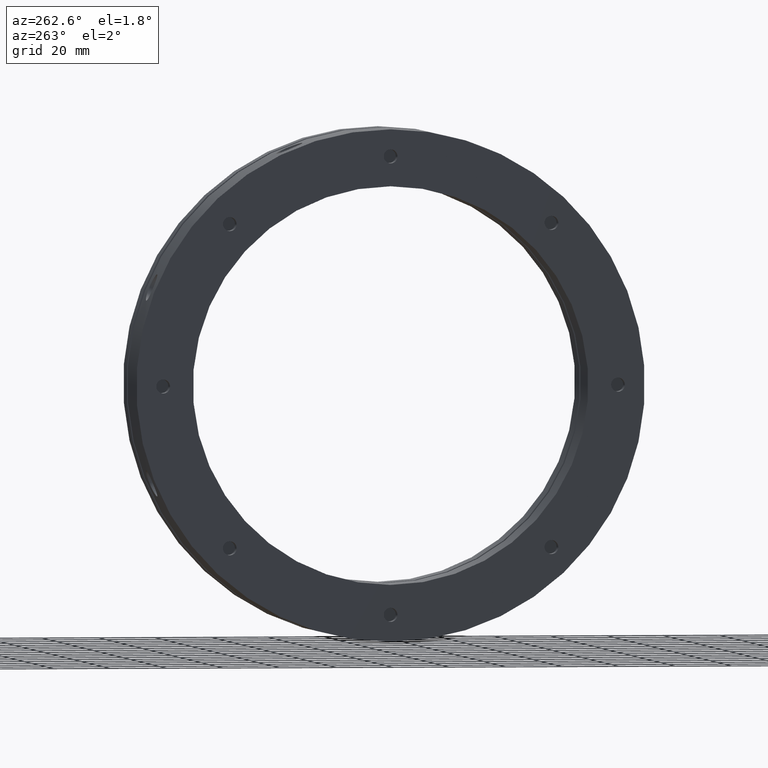
[diagram: clean part render]
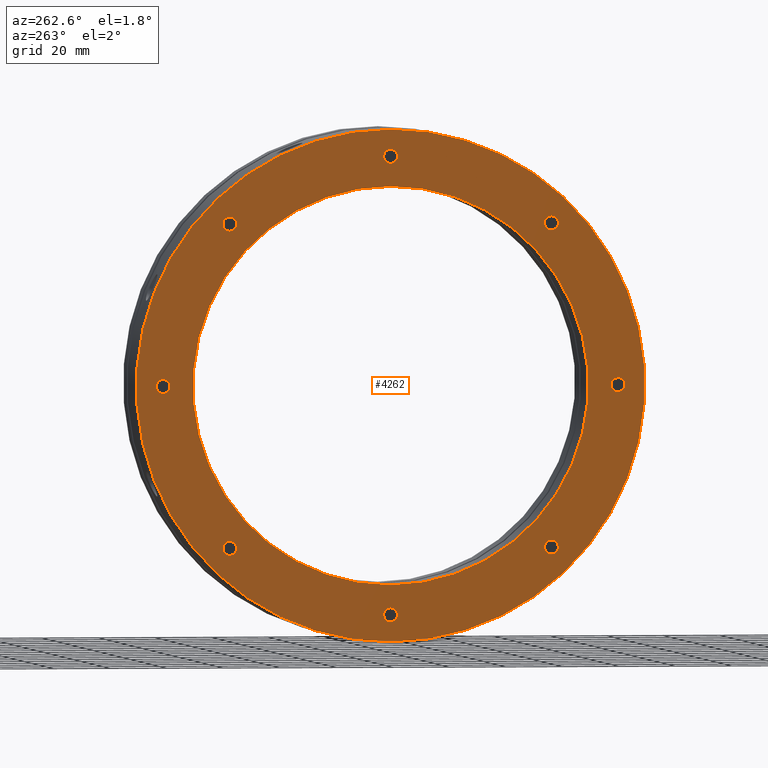
[diagram: same view with one face highlighted and labeled with its STEP entity id]
A machine part, auxiliary view. The second image highlights one B-rep face of the part: STEP entity #4262.
In plain terms, the highlighted planar face has unit normal (-1, 0, 0).
Its self-contained STEP definition (entity closure, byte-faithful):
#45 = EDGE_LOOP ( 'NONE', ( #411, #410 ) ) ;
#47 = EDGE_LOOP ( 'NONE', ( #405, #404 ) ) ;
#53 = EDGE_LOOP ( 'NONE', ( #399, #398 ) ) ;
#68 = EDGE_LOOP ( 'NONE', ( #403, #402 ) ) ;
#76 = EDGE_LOOP ( 'NONE', ( #401, #400 ) ) ;
#77 = EDGE_LOOP ( 'NONE', ( #407, #406 ) ) ;
#80 = EDGE_LOOP ( 'NONE', ( #397, #396 ) ) ;
#82 = EDGE_LOOP ( 'NONE', ( #395, #394 ) ) ;
#90 = EDGE_LOOP ( 'NONE', ( #393, #392 ) ) ;
#103 = EDGE_LOOP ( 'NONE', ( #409, #408 ) ) ;
#392 = ORIENTED_EDGE ( 'NONE', *, *, #5453, .F. ) ;
#393 = ORIENTED_EDGE ( 'NONE', *, *, #5485, .F. ) ;
#394 = ORIENTED_EDGE ( 'NONE', *, *, #5439, .T. ) ;
#395 = ORIENTED_EDGE ( 'NONE', *, *, #6006, .T. ) ;
#396 = ORIENTED_EDGE ( 'NONE', *, *, #5440, .T. ) ;
#397 = ORIENTED_EDGE ( 'NONE', *, *, #6002, .T. ) ;
#398 = ORIENTED_EDGE ( 'NONE', *, *, #5441, .T. ) ;
#399 = ORIENTED_EDGE ( 'NONE', *, *, #5918, .T. ) ;
#400 = ORIENTED_EDGE ( 'NONE', *, *, #5442, .T. ) ;
#401 = ORIENTED_EDGE ( 'NONE', *, *, #5909, .T. ) ;
#402 = ORIENTED_EDGE ( 'NONE', *, *, #5443, .T. ) ;
#403 = ORIENTED_EDGE ( 'NONE', *, *, #5914, .T. ) ;
#404 = ORIENTED_EDGE ( 'NONE', *, *, #5444, .T. ) ;
#405 = ORIENTED_EDGE ( 'NONE', *, *, #6023, .T. ) ;
#406 = ORIENTED_EDGE ( 'NONE', *, *, #5445, .T. ) ;
#407 = ORIENTED_EDGE ( 'NONE', *, *, #6042, .T. ) ;
#408 = ORIENTED_EDGE ( 'NONE', *, *, #5446, .T. ) ;
#409 = ORIENTED_EDGE ( 'NONE', *, *, #6020, .T. ) ;
#410 = ORIENTED_EDGE ( 'NONE', *, *, #5926, .T. ) ;
#411 = ORIENTED_EDGE ( 'NONE', *, *, #5447, .T. ) ;
#725 = AXIS2_PLACEMENT_3D ( 'NONE', #3377, #3378, #3379 ) ;
#732 = AXIS2_PLACEMENT_3D ( 'NONE', #3089, #3090, #3091 ) ;
#734 = AXIS2_PLACEMENT_3D ( 'NONE', #3080, #3081, #3082 ) ;
#735 = AXIS2_PLACEMENT_3D ( 'NONE', #3052, #3053, #3054 ) ;
#737 = AXIS2_PLACEMENT_3D ( 'NONE', #3042, #3043, #3044 ) ;
#740 = AXIS2_PLACEMENT_3D ( 'NONE', #3025, #3026, #3027 ) ;
#744 = AXIS2_PLACEMENT_3D ( 'NONE', #3005, #3006, #3007 ) ;
#746 = AXIS2_PLACEMENT_3D ( 'NONE', #2995, #2996, #2997 ) ;
#750 = AXIS2_PLACEMENT_3D ( 'NONE', #2980, #2981, #2982 ) ;
#1048 = AXIS2_PLACEMENT_3D ( 'NONE', #5160, #5156, #5162 ) ;
#1604 = FACE_BOUND ( 'NONE', #77, .T. ) ;
#1605 = FACE_BOUND ( 'NONE', #45, .T. ) ;
#1606 = FACE_BOUND ( 'NONE', #47, .T. ) ;
#1608 = FACE_BOUND ( 'NONE', #68, .T. ) ;
#1610 = FACE_BOUND ( 'NONE', #103, .T. ) ;
#1611 = FACE_BOUND ( 'NONE', #76, .T. ) ;
#1612 = FACE_BOUND ( 'NONE', #53, .T. ) ;
#1613 = FACE_BOUND ( 'NONE', #80, .T. ) ;
#1614 = FACE_BOUND ( 'NONE', #82, .T. ) ;
#1615 = FACE_OUTER_BOUND ( 'NONE', #90, .T. ) ;
#1701 = CIRCLE ( 'NONE', #3725, 2.458500000000002600 ) ;
#1702 = CIRCLE ( 'NONE', #3724, 2.458499999999999900 ) ;
#1703 = CIRCLE ( 'NONE', #3723, 2.458500000000002600 ) ;
#1704 = CIRCLE ( 'NONE', #3722, 2.458500000000002600 ) ;
#1705 = CIRCLE ( 'NONE', #3721, 2.458500000000002600 ) ;
#1706 = CIRCLE ( 'NONE', #3720, 2.458499999999999900 ) ;
#1707 = CIRCLE ( 'NONE', #3719, 2.458500000000002600 ) ;
#1708 = CIRCLE ( 'NONE', #3718, 2.458500000000002600 ) ;
#1709 = CIRCLE ( 'NONE', #3717, 70.00000000000000000 ) ;
#1712 = CIRCLE ( 'NONE', #3715, 90.00000000000000000 ) ;
#1754 = CIRCLE ( 'NONE', #3706, 90.00000000000000000 ) ;
#1847 = CIRCLE ( 'NONE', #750, 2.458500000000002600 ) ;
#1856 = CIRCLE ( 'NONE', #746, 2.458500000000002600 ) ;
#1858 = CIRCLE ( 'NONE', #744, 2.458500000000002600 ) ;
#1872 = CIRCLE ( 'NONE', #740, 70.00000000000000000 ) ;
#1881 = CIRCLE ( 'NONE', #737, 2.458499999999999900 ) ;
#1887 = CIRCLE ( 'NONE', #735, 2.458500000000002600 ) ;
#1893 = CIRCLE ( 'NONE', #734, 2.458500000000002600 ) ;
#1917 = CIRCLE ( 'NONE', #732, 2.458499999999999900 ) ;
#1953 = CIRCLE ( 'NONE', #725, 2.458500000000002600 ) ;
#2132 = CARTESIAN_POINT ( 'NONE',  ( -2.428612866367529900E-014, 56.92209588551709500, 56.92209588551706600 ) ) ;
#2133 = DIRECTION ( 'NONE',  ( 1.000000000000000000, -0.0000000000000000000, -0.0000000000000000000 ) ) ;
#2134 = DIRECTION ( 'NONE',  ( 0.0000000000000000000, 0.0000000000000000000, 1.000000000000000000 ) ) ;
#2135 = CARTESIAN_POINT ( 'NONE',  ( -2.428612866367529900E-014, 80.50000000000000000, -1.776356999999999900E-014 ) ) ;
#2136 = DIRECTION ( 'NONE',  ( 1.000000000000000000, -0.0000000000000000000, -0.0000000000000000000 ) ) ;
#2137 = DIRECTION ( 'NONE',  ( 0.0000000000000000000, 0.0000000000000000000, 1.000000000000000000 ) ) ;
#2138 = CARTESIAN_POINT ( 'NONE',  ( -2.428612866367529900E-014, 56.92209588551706600, -56.92209588551709500 ) ) ;
#2139 = DIRECTION ( 'NONE',  ( 1.000000000000000000, -0.0000000000000000000, -0.0000000000000000000 ) ) ;
#2140 = DIRECTION ( 'NONE',  ( 0.0000000000000000000, 0.0000000000000000000, 1.000000000000000000 ) ) ;
#2141 = CARTESIAN_POINT ( 'NONE',  ( -2.428612866367529900E-014, -1.776356999999999900E-014, -80.50000000000000000 ) ) ;
#2142 = DIRECTION ( 'NONE',  ( 1.000000000000000000, -0.0000000000000000000, -0.0000000000000000000 ) ) ;
#2143 = DIRECTION ( 'NONE',  ( 0.0000000000000000000, 0.0000000000000000000, 1.000000000000000000 ) ) ;
#2144 = CARTESIAN_POINT ( 'NONE',  ( -2.428612866367529900E-014, -56.92209588551708800, -56.92209588551708100 ) ) ;
#2145 = DIRECTION ( 'NONE',  ( 1.000000000000000000, -0.0000000000000000000, -0.0000000000000000000 ) ) ;
#2146 = DIRECTION ( 'NONE',  ( 0.0000000000000000000, 0.0000000000000000000, 1.000000000000000000 ) ) ;
#2147 = CARTESIAN_POINT ( 'NONE',  ( -2.428612866367529900E-014, -80.50000000000000000, 0.0000000000000000000 ) ) ;
#2148 = DIRECTION ( 'NONE',  ( 1.000000000000000000, -0.0000000000000000000, -0.0000000000000000000 ) ) ;
#2149 = DIRECTION ( 'NONE',  ( 0.0000000000000000000, 0.0000000000000000000, 1.000000000000000000 ) ) ;
#2150 = CARTESIAN_POINT ( 'NONE',  ( -2.428612866367529900E-014, -56.92209588551708100, 56.92209588551708800 ) ) ;
#2151 = DIRECTION ( 'NONE',  ( 1.000000000000000000, -0.0000000000000000000, -0.0000000000000000000 ) ) ;
#2152 = DIRECTION ( 'NONE',  ( 0.0000000000000000000, 0.0000000000000000000, 1.000000000000000000 ) ) ;
#2153 = CARTESIAN_POINT ( 'NONE',  ( -2.428612866367529900E-014, 0.0000000000000000000, 80.50000000000000000 ) ) ;
#2154 = DIRECTION ( 'NONE',  ( 1.000000000000000000, -0.0000000000000000000, -0.0000000000000000000 ) ) ;
#2155 = DIRECTION ( 'NONE',  ( 0.0000000000000000000, 0.0000000000000000000, 1.000000000000000000 ) ) ;
#2156 = CARTESIAN_POINT ( 'NONE',  ( -2.081668171172168500E-014, 0.0000000000000000000, 0.0000000000000000000 ) ) ;
#2157 = DIRECTION ( 'NONE',  ( 1.000000000000000000, 0.0000000000000000000, 0.0000000000000000000 ) ) ;
#2158 = DIRECTION ( 'NONE',  ( 0.0000000000000000000, 0.0000000000000000000, -1.000000000000000000 ) ) ;
#2314 = CARTESIAN_POINT ( 'NONE',  ( -2.775557561562891400E-014, 0.0000000000000000000, 0.0000000000000000000 ) ) ;
#2315 = DIRECTION ( 'NONE',  ( 1.000000000000000000, 0.0000000000000000000, 0.0000000000000000000 ) ) ;
#2316 = DIRECTION ( 'NONE',  ( 0.0000000000000000000, 0.0000000000000000000, -1.000000000000000000 ) ) ;
#2604 = CARTESIAN_POINT ( 'NONE',  ( -2.775557561562891400E-014, 0.0000000000000000000, 0.0000000000000000000 ) ) ;
#2605 = DIRECTION ( 'NONE',  ( 1.000000000000000000, 0.0000000000000000000, 0.0000000000000000000 ) ) ;
#2606 = DIRECTION ( 'NONE',  ( 0.0000000000000000000, 0.0000000000000000000, -1.000000000000000000 ) ) ;
#2980 = CARTESIAN_POINT ( 'NONE',  ( -2.428612866367529900E-014, -1.776356999999999900E-014, -80.50000000000000000 ) ) ;
#2981 = DIRECTION ( 'NONE',  ( 1.000000000000000000, -0.0000000000000000000, -0.0000000000000000000 ) ) ;
#2982 = DIRECTION ( 'NONE',  ( 0.0000000000000000000, 0.0000000000000000000, 1.000000000000000000 ) ) ;
#2995 = CARTESIAN_POINT ( 'NONE',  ( -2.428612866367529900E-014, -56.92209588551708800, -56.92209588551708100 ) ) ;
#2996 = DIRECTION ( 'NONE',  ( 1.000000000000000000, -0.0000000000000000000, -0.0000000000000000000 ) ) ;
#2997 = DIRECTION ( 'NONE',  ( 0.0000000000000000000, 0.0000000000000000000, 1.000000000000000000 ) ) ;
#3005 = CARTESIAN_POINT ( 'NONE',  ( -2.428612866367529900E-014, 56.92209588551706600, -56.92209588551709500 ) ) ;
#3006 = DIRECTION ( 'NONE',  ( 1.000000000000000000, -0.0000000000000000000, -0.0000000000000000000 ) ) ;
#3007 = DIRECTION ( 'NONE',  ( 0.0000000000000000000, 0.0000000000000000000, 1.000000000000000000 ) ) ;
#3025 = CARTESIAN_POINT ( 'NONE',  ( -2.081668171172168500E-014, 0.0000000000000000000, 0.0000000000000000000 ) ) ;
#3026 = DIRECTION ( 'NONE',  ( 1.000000000000000000, 0.0000000000000000000, 0.0000000000000000000 ) ) ;
#3027 = DIRECTION ( 'NONE',  ( 0.0000000000000000000, 0.0000000000000000000, -1.000000000000000000 ) ) ;
#3042 = CARTESIAN_POINT ( 'NONE',  ( -2.428612866367529900E-014, 80.50000000000000000, -1.776356999999999900E-014 ) ) ;
#3043 = DIRECTION ( 'NONE',  ( 1.000000000000000000, -0.0000000000000000000, -0.0000000000000000000 ) ) ;
#3044 = DIRECTION ( 'NONE',  ( 0.0000000000000000000, 0.0000000000000000000, 1.000000000000000000 ) ) ;
#3052 = CARTESIAN_POINT ( 'NONE',  ( -2.428612866367529900E-014, 56.92209588551709500, 56.92209588551706600 ) ) ;
#3053 = DIRECTION ( 'NONE',  ( 1.000000000000000000, -0.0000000000000000000, -0.0000000000000000000 ) ) ;
#3054 = DIRECTION ( 'NONE',  ( 0.0000000000000000000, 0.0000000000000000000, 1.000000000000000000 ) ) ;
#3080 = CARTESIAN_POINT ( 'NONE',  ( -2.428612866367529900E-014, 0.0000000000000000000, 80.50000000000000000 ) ) ;
#3081 = DIRECTION ( 'NONE',  ( 1.000000000000000000, -0.0000000000000000000, -0.0000000000000000000 ) ) ;
#3082 = DIRECTION ( 'NONE',  ( 0.0000000000000000000, 0.0000000000000000000, 1.000000000000000000 ) ) ;
#3089 = CARTESIAN_POINT ( 'NONE',  ( -2.428612866367529900E-014, -80.50000000000000000, 0.0000000000000000000 ) ) ;
#3090 = DIRECTION ( 'NONE',  ( 1.000000000000000000, -0.0000000000000000000, -0.0000000000000000000 ) ) ;
#3091 = DIRECTION ( 'NONE',  ( 0.0000000000000000000, 0.0000000000000000000, 1.000000000000000000 ) ) ;
#3377 = CARTESIAN_POINT ( 'NONE',  ( -2.428612866367529900E-014, -56.92209588551708100, 56.92209588551708800 ) ) ;
#3378 = DIRECTION ( 'NONE',  ( 1.000000000000000000, -0.0000000000000000000, -0.0000000000000000000 ) ) ;
#3379 = DIRECTION ( 'NONE',  ( 0.0000000000000000000, 0.0000000000000000000, 1.000000000000000000 ) ) ;
#3706 = AXIS2_PLACEMENT_3D ( 'NONE', #2604, #2605, #2606 ) ;
#3715 = AXIS2_PLACEMENT_3D ( 'NONE', #2314, #2315, #2316 ) ;
#3717 = AXIS2_PLACEMENT_3D ( 'NONE', #2156, #2157, #2158 ) ;
#3718 = AXIS2_PLACEMENT_3D ( 'NONE', #2153, #2154, #2155 ) ;
#3719 = AXIS2_PLACEMENT_3D ( 'NONE', #2150, #2151, #2152 ) ;
#3720 = AXIS2_PLACEMENT_3D ( 'NONE', #2147, #2148, #2149 ) ;
#3721 = AXIS2_PLACEMENT_3D ( 'NONE', #2144, #2145, #2146 ) ;
#3722 = AXIS2_PLACEMENT_3D ( 'NONE', #2141, #2142, #2143 ) ;
#3723 = AXIS2_PLACEMENT_3D ( 'NONE', #2138, #2139, #2140 ) ;
#3724 = AXIS2_PLACEMENT_3D ( 'NONE', #2135, #2136, #2137 ) ;
#3725 = AXIS2_PLACEMENT_3D ( 'NONE', #2132, #2133, #2134 ) ;
#4014 = VERTEX_POINT ( 'NONE', #4567 ) ;
#4015 = VERTEX_POINT ( 'NONE', #4568 ) ;
#4018 = VERTEX_POINT ( 'NONE', #4571 ) ;
#4019 = VERTEX_POINT ( 'NONE', #4572 ) ;
#4022 = VERTEX_POINT ( 'NONE', #4575 ) ;
#4023 = VERTEX_POINT ( 'NONE', #4576 ) ;
#4026 = VERTEX_POINT ( 'NONE', #4579 ) ;
#4027 = VERTEX_POINT ( 'NONE', #4580 ) ;
#4030 = VERTEX_POINT ( 'NONE', #4583 ) ;
#4031 = VERTEX_POINT ( 'NONE', #4584 ) ;
#4034 = VERTEX_POINT ( 'NONE', #4587 ) ;
#4035 = VERTEX_POINT ( 'NONE', #4588 ) ;
#4038 = VERTEX_POINT ( 'NONE', #4591 ) ;
#4039 = VERTEX_POINT ( 'NONE', #4592 ) ;
#4042 = VERTEX_POINT ( 'NONE', #4595 ) ;
#4043 = VERTEX_POINT ( 'NONE', #4596 ) ;
#4048 = VERTEX_POINT ( 'NONE', #4601 ) ;
#4055 = VERTEX_POINT ( 'NONE', #4608 ) ;
#4081 = VERTEX_POINT ( 'NONE', #4634 ) ;
#4084 = VERTEX_POINT ( 'NONE', #4637 ) ;
#4262 = ADVANCED_FACE ( 'NONE', ( #1605, #1610, #1604, #1606, #1608, #1611, #1612, #1613, #1614, #1615 ), #5158, .T. ) ;
#4567 = CARTESIAN_POINT ( 'NONE',  ( -2.428612866367529900E-014, 56.92209588551709500, 54.46359588551706600 ) ) ;
#4568 = CARTESIAN_POINT ( 'NONE',  ( -2.428612866367529900E-014, 56.92209588551709500, 59.38059588551706700 ) ) ;
#4571 = CARTESIAN_POINT ( 'NONE',  ( -2.428612866367529900E-014, 80.50000000000000000, -2.458500000000017700 ) ) ;
#4572 = CARTESIAN_POINT ( 'NONE',  ( -2.428612866367529900E-014, 80.50000000000000000, 2.458499999999982100 ) ) ;
#4575 = CARTESIAN_POINT ( 'NONE',  ( -2.428612866367529900E-014, 56.92209588551706600, -59.38059588551709600 ) ) ;
#4576 = CARTESIAN_POINT ( 'NONE',  ( -2.428612866367529900E-014, 56.92209588551706600, -54.46359588551709400 ) ) ;
#4579 = CARTESIAN_POINT ( 'NONE',  ( -2.428612866367529900E-014, -1.746249058442962300E-014, -82.95850000000000100 ) ) ;
#4580 = CARTESIAN_POINT ( 'NONE',  ( -2.428612866367529900E-014, -1.776356999999999900E-014, -78.04149999999999900 ) ) ;
#4583 = CARTESIAN_POINT ( 'NONE',  ( -2.428612866367529900E-014, -56.92209588551708800, -59.38059588551708100 ) ) ;
#4584 = CARTESIAN_POINT ( 'NONE',  ( -2.428612866367529900E-014, -56.92209588551708800, -54.46359588551708000 ) ) ;
#4587 = CARTESIAN_POINT ( 'NONE',  ( -2.428612866367529900E-014, -80.50000000000000000, -2.458499999999999900 ) ) ;
#4588 = CARTESIAN_POINT ( 'NONE',  ( -2.428612866367529900E-014, -80.50000000000000000, 2.458499999999999900 ) ) ;
#4591 = CARTESIAN_POINT ( 'NONE',  ( -2.428612866367529900E-014, -56.92209588551708100, 54.46359588551708700 ) ) ;
#4592 = CARTESIAN_POINT ( 'NONE',  ( -2.428612866367529900E-014, -56.92209588551708100, 59.38059588551708900 ) ) ;
#4595 = CARTESIAN_POINT ( 'NONE',  ( -2.428612866367529900E-014, 3.010794155703764200E-016, 78.04149999999999900 ) ) ;
#4596 = CARTESIAN_POINT ( 'NONE',  ( -2.428612866367529900E-014, 0.0000000000000000000, 82.95850000000000100 ) ) ;
#4601 = CARTESIAN_POINT ( 'NONE',  ( -2.081668171172168500E-014, 8.572527594031473000E-015, 70.00000000000000000 ) ) ;
#4608 = CARTESIAN_POINT ( 'NONE',  ( -2.081668171172168500E-014, 0.0000000000000000000, -70.00000000000000000 ) ) ;
#4634 = CARTESIAN_POINT ( 'NONE',  ( -2.775557561562891400E-014, 1.102182119232617900E-014, 90.00000000000000000 ) ) ;
#4637 = CARTESIAN_POINT ( 'NONE',  ( -2.775557561562891400E-014, 0.0000000000000000000, -90.00000000000000000 ) ) ;
#5156 = DIRECTION ( 'NONE',  ( -1.000000000000000000, 0.0000000000000000000, 0.0000000000000000000 ) ) ;
#5158 = PLANE ( 'NONE',  #1048 ) ;
#5160 = CARTESIAN_POINT ( 'NONE',  ( -2.359151000000000000E-014, 80.00000000000000000, 0.0000000000000000000 ) ) ;
#5162 = DIRECTION ( 'NONE',  ( 0.0000000000000000000, 0.0000000000000000000, 1.000000000000000000 ) ) ;
#5439 = EDGE_CURVE ( 'NONE', #4014, #4015, #1701, .T. ) ;
#5440 = EDGE_CURVE ( 'NONE', #4018, #4019, #1702, .T. ) ;
#5441 = EDGE_CURVE ( 'NONE', #4022, #4023, #1703, .T. ) ;
#5442 = EDGE_CURVE ( 'NONE', #4026, #4027, #1704, .T. ) ;
#5443 = EDGE_CURVE ( 'NONE', #4030, #4031, #1705, .T. ) ;
#5444 = EDGE_CURVE ( 'NONE', #4034, #4035, #1706, .T. ) ;
#5445 = EDGE_CURVE ( 'NONE', #4038, #4039, #1707, .T. ) ;
#5446 = EDGE_CURVE ( 'NONE', #4042, #4043, #1708, .T. ) ;
#5447 = EDGE_CURVE ( 'NONE', #4055, #4048, #1709, .T. ) ;
#5453 = EDGE_CURVE ( 'NONE', #4081, #4084, #1712, .T. ) ;
#5485 = EDGE_CURVE ( 'NONE', #4084, #4081, #1754, .T. ) ;
#5909 = EDGE_CURVE ( 'NONE', #4027, #4026, #1847, .T. ) ;
#5914 = EDGE_CURVE ( 'NONE', #4031, #4030, #1856, .T. ) ;
#5918 = EDGE_CURVE ( 'NONE', #4023, #4022, #1858, .T. ) ;
#5926 = EDGE_CURVE ( 'NONE', #4048, #4055, #1872, .T. ) ;
#6002 = EDGE_CURVE ( 'NONE', #4019, #4018, #1881, .T. ) ;
#6006 = EDGE_CURVE ( 'NONE', #4015, #4014, #1887, .T. ) ;
#6020 = EDGE_CURVE ( 'NONE', #4043, #4042, #1893, .T. ) ;
#6023 = EDGE_CURVE ( 'NONE', #4035, #4034, #1917, .T. ) ;
#6042 = EDGE_CURVE ( 'NONE', #4039, #4038, #1953, .T. ) ;